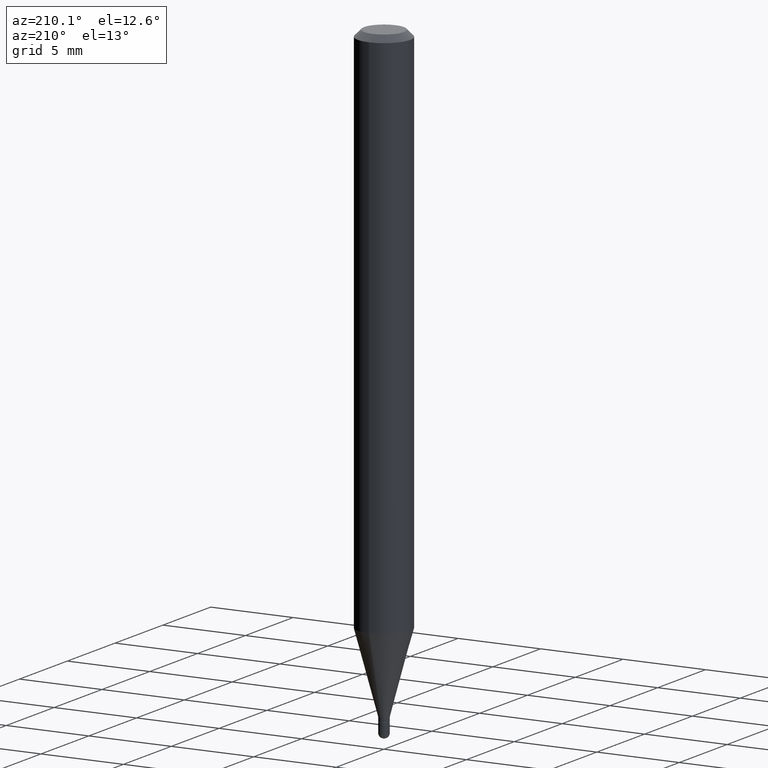
[diagram: clean part render]
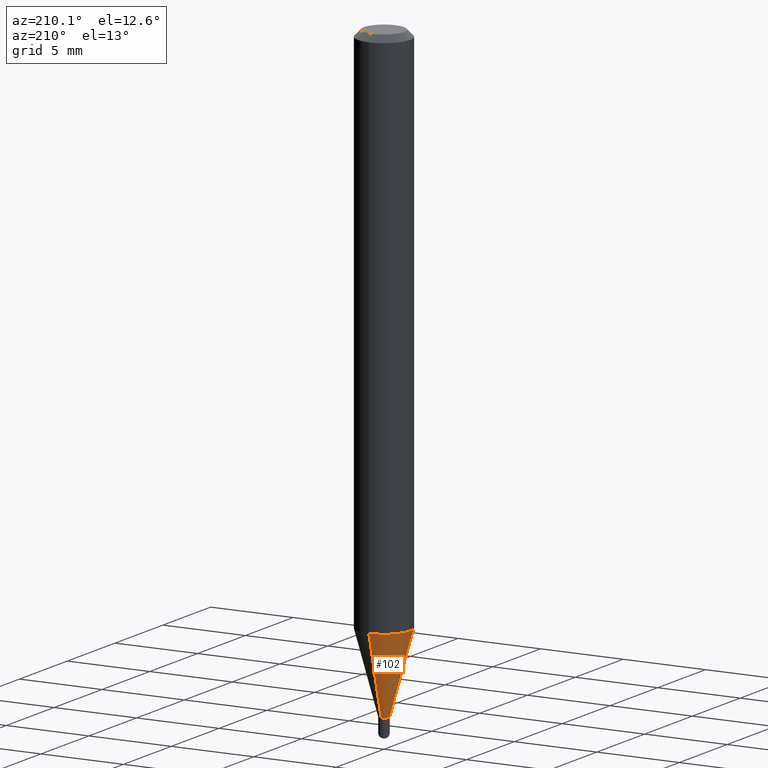
[diagram: same view with one face highlighted and labeled with its STEP entity id]
A machine part, auxiliary view. The second image highlights one B-rep face of the part: STEP entity #102.
In plain terms, the highlighted conical surface has half-angle 15 deg.
Its self-contained STEP definition (entity closure, byte-faithful):
#7 = AXIS2_PLACEMENT_3D ( 'NONE', #348, #468, #471 ) ;
#10 = EDGE_CURVE ( 'NONE', #340, #172, #161, .T. ) ;
#29 = VECTOR ( 'NONE', #270, 39.37007874015748143 ) ;
#35 = AXIS2_PLACEMENT_3D ( 'NONE', #276, #482, #232 ) ;
#54 = DIRECTION ( 'NONE',  ( 1.839019923739599921E-15, 0.2588190451025249028, 0.9659258262890670910 ) ) ;
#61 = CARTESIAN_POINT ( 'NONE',  ( -4.364351673553606573E-16, -0.06250000000000442701, -1.265531434217771922 ) ) ;
#76 = ORIENTED_EDGE ( 'NONE', *, *, #235, .F. ) ;
#95 = FACE_OUTER_BOUND ( 'NONE', #151, .T. ) ;
#102 = ADVANCED_FACE ( 'NONE', ( #95 ), #440, .T. ) ;
#151 = EDGE_LOOP ( 'NONE', ( #487, #261, #289, #76 ) ) ;
#152 = CARTESIAN_POINT ( 'NONE',  ( -8.379555213219910077E-17, -0.01200000000000499972, -1.454000000000000181 ) ) ;
#159 = CARTESIAN_POINT ( 'NONE',  ( 4.440892098500932831E-16, 0.06249999999999555911, -1.265531434217772366 ) ) ;
#161 = LINE ( 'NONE', #208, #374 ) ;
#172 = VERTEX_POINT ( 'NONE', #159 ) ;
#200 = CIRCLE ( 'NONE', #293, 0.06250000000000000000 ) ;
#208 = CARTESIAN_POINT ( 'NONE',  ( 8.526512829124701746E-17, 0.01199999999999484465, -1.454000000000000181 ) ) ;
#225 = CIRCLE ( 'NONE', #7, 0.01199999999999992219 ) ;
#230 = CARTESIAN_POINT ( 'NONE',  ( 2.646771690706703907E-16, 0.01199999999999484465, -1.454000000000000181 ) ) ;
#232 = DIRECTION ( 'NONE',  ( -6.982962677686266711E-15, -1.000000000000000000, 0.000000000000000000 ) ) ;
#235 = EDGE_CURVE ( 'NONE', #172, #338, #200, .T. ) ;
#254 = CARTESIAN_POINT ( 'NONE',  ( 3.094806174463673262E-29, -4.418595813648531797E-15, -1.265531434217772144 ) ) ;
#261 = ORIENTED_EDGE ( 'NONE', *, *, #423, .T. ) ;
#270 = DIRECTION ( 'NONE',  ( -1.807323732225329745E-15, -0.2588190451025181305, 0.9659258262890689783 ) ) ;
#276 = CARTESIAN_POINT ( 'NONE',  ( 3.555698464694041863E-29, -5.076632740470843581E-15, -1.454000000000000181 ) ) ;
#289 = ORIENTED_EDGE ( 'NONE', *, *, #498, .T. ) ;
#293 = AXIS2_PLACEMENT_3D ( 'NONE', #254, #443, #408 ) ;
#312 = CARTESIAN_POINT ( 'NONE',  ( -8.379555213219910077E-17, -0.01200000000000499972, -1.454000000000000181 ) ) ;
#338 = VERTEX_POINT ( 'NONE', #61 ) ;
#340 = VERTEX_POINT ( 'NONE', #230 ) ;
#348 = CARTESIAN_POINT ( 'NONE',  ( 3.555698464694041863E-29, -5.076632740470843581E-15, -1.454000000000000181 ) ) ;
#361 = VERTEX_POINT ( 'NONE', #152 ) ;
#374 = VECTOR ( 'NONE', #54, 39.37007874015748143 ) ;
#408 = DIRECTION ( 'NONE',  ( -6.982962677686265922E-15, -1.000000000000000000, 4.370956789862821150E-15 ) ) ;
#423 = EDGE_CURVE ( 'NONE', #340, #361, #225, .T. ) ;
#440 = CONICAL_SURFACE ( 'NONE', #35, 0.01199999999999992219, 0.2617993877991502405 ) ;
#443 = DIRECTION ( 'NONE',  ( -2.445459741880358586E-29, 3.491494319443495582E-15, 1.000000000000000000 ) ) ;
#461 = LINE ( 'NONE', #312, #29 ) ;
#468 = DIRECTION ( 'NONE',  ( -2.445459741880358586E-29, 3.491494319443495582E-15, 1.000000000000000000 ) ) ;
#471 = DIRECTION ( 'NONE',  ( -6.982962677686266711E-15, -1.000000000000000000, 0.000000000000000000 ) ) ;
#482 = DIRECTION ( 'NONE',  ( -2.445459741880358586E-29, 3.491494319443495582E-15, 1.000000000000000000 ) ) ;
#487 = ORIENTED_EDGE ( 'NONE', *, *, #10, .F. ) ;
#498 = EDGE_CURVE ( 'NONE', #361, #338, #461, .T. ) ;